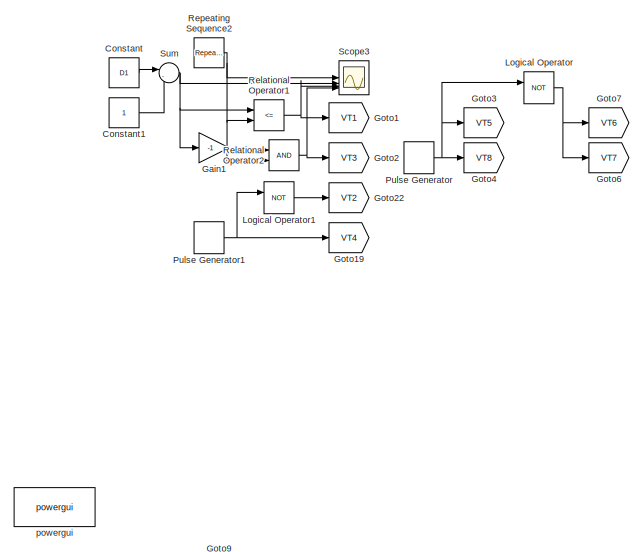
[diagram: root canvas - part 1/2, top left region]
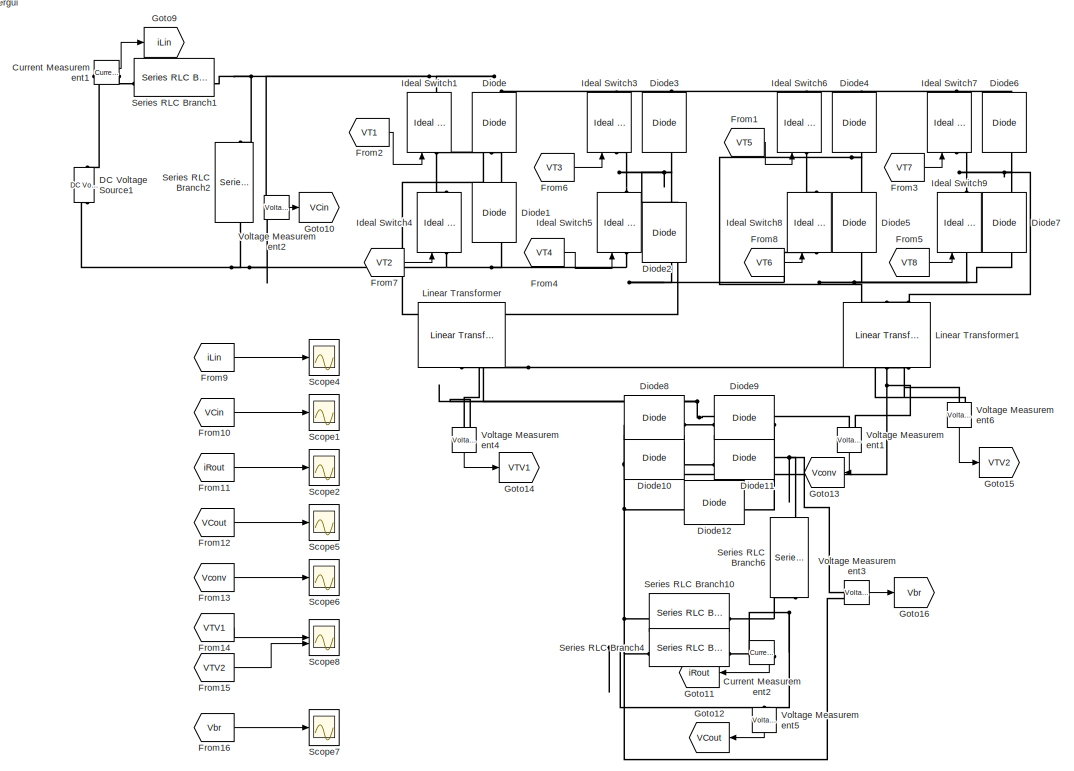
[diagram: root canvas - part 2/2, full width, bottom band]
MODEL slx_818c9b822532
KIND model
CONFIG AbsTol = auto
CONFIG EnableMultiTasking = off
CONFIG FixedStep = 1e-6
CONFIG MaxStep = auto
CONFIG MinStep = auto
CONFIG RelTol = 1e-3
CONFIG SampleTimeConstraint = Unconstrained
CONFIG SolverName = ode1
CONFIG StartTime = 0.0
CONFIG StopTime = time/3
BLOCK [Constant] Constant
  Value = D1
BLOCK [Constant] Constant1
BLOCK [Reference] Current Measurement1  REF=spsCurrentMeasurementLib/Current Measurement
  LibrarySourceBlock = sps_lib/Sensors and Measurements/Current Measurement
  SourceBlock = spsCurrentMeasurementLib/Current Measurement
  SourceType = Current Measurement
  UserDataPersistent = on
BLOCK [Reference] Current Measurement2  REF=spsCurrentMeasurementLib/Current Measurement
  LibrarySourceBlock = sps_lib/Sensors and Measurements/Current Measurement
  NameLocation = top
  SourceBlock = spsCurrentMeasurementLib/Current Measurement
  SourceType = Current Measurement
  UserDataPersistent = on
BLOCK [Reference] DC Voltage Source1  REF=spsDCVoltageSourceLib/DC Voltage Source
  LibrarySourceBlock = sps_lib/Sources/DC Voltage Source
  SourceBlock = spsDCVoltageSourceLib/DC Voltage Source
  SourceType = DC Voltage Source
BLOCK [Reference] Diode  REF=spsDiodeLib/Diode
  LibrarySourceBlock = sps_lib/Power Electronics/Diode
  NameLocation = right
  SourceBlock = spsDiodeLib/Diode
  SourceType = Diode
BLOCK [Reference] Diode1  REF=spsDiodeLib/Diode
  LibrarySourceBlock = sps_lib/Power Electronics/Diode
  NameLocation = right
  SourceBlock = spsDiodeLib/Diode
  SourceType = Diode
BLOCK [Reference] Diode10  REF=spsDiodeLib/Diode
  LibrarySourceBlock = sps_lib/Power Electronics/Diode
  SourceBlock = spsDiodeLib/Diode
  SourceType = Diode
BLOCK [Reference] Diode11  REF=spsDiodeLib/Diode
  LibrarySourceBlock = sps_lib/Power Electronics/Diode
  SourceBlock = spsDiodeLib/Diode
  SourceType = Diode
BLOCK [Reference] Diode12  REF=spsDiodeLib/Diode
  LibrarySourceBlock = sps_lib/Power Electronics/Diode
  SourceBlock = spsDiodeLib/Diode
  SourceType = Diode
BLOCK [Reference] Diode2  REF=spsDiodeLib/Diode
  LibrarySourceBlock = sps_lib/Power Electronics/Diode
  NameLocation = right
  SourceBlock = spsDiodeLib/Diode
  SourceType = Diode
BLOCK [Reference] Diode3  REF=spsDiodeLib/Diode
  LibrarySourceBlock = sps_lib/Power Electronics/Diode
  NameLocation = right
  SourceBlock = spsDiodeLib/Diode
  SourceType = Diode
BLOCK [Reference] Diode4  REF=spsDiodeLib/Diode
  LibrarySourceBlock = sps_lib/Power Electronics/Diode
  NameLocation = right
  SourceBlock = spsDiodeLib/Diode
  SourceType = Diode
BLOCK [Reference] Diode5  REF=spsDiodeLib/Diode
  LibrarySourceBlock = sps_lib/Power Electronics/Diode
  NameLocation = right
  SourceBlock = spsDiodeLib/Diode
  SourceType = Diode
BLOCK [Reference] Diode6  REF=spsDiodeLib/Diode
  LibrarySourceBlock = sps_lib/Power Electronics/Diode
  NameLocation = right
  SourceBlock = spsDiodeLib/Diode
  SourceType = Diode
BLOCK [Reference] Diode7  REF=spsDiodeLib/Diode
  LibrarySourceBlock = sps_lib/Power Electronics/Diode
  NameLocation = right
  SourceBlock = spsDiodeLib/Diode
  SourceType = Diode
BLOCK [Reference] Diode8  REF=spsDiodeLib/Diode
  LibrarySourceBlock = sps_lib/Power Electronics/Diode
  SourceBlock = spsDiodeLib/Diode
  SourceType = Diode
BLOCK [Reference] Diode9  REF=spsDiodeLib/Diode
  LibrarySourceBlock = sps_lib/Power Electronics/Diode
  SourceBlock = spsDiodeLib/Diode
  SourceType = Diode
BLOCK [From] From1
  GotoTag = VT5
  TagVisibility = global
BLOCK [From] From10
  GotoTag = VCin
  TagVisibility = global
BLOCK [From] From11
  GotoTag = iRout
  TagVisibility = global
BLOCK [From] From12
  GotoTag = VCout
  TagVisibility = global
BLOCK [From] From13
  GotoTag = Vconv
  TagVisibility = global
BLOCK [From] From14
  GotoTag = VTV1
  TagVisibility = global
BLOCK [From] From15
  GotoTag = VTV2
  TagVisibility = global
BLOCK [From] From16
  GotoTag = Vbr
  TagVisibility = global
BLOCK [From] From2
  GotoTag = VT1
  TagVisibility = global
BLOCK [From] From3
  GotoTag = VT7
  TagVisibility = global
BLOCK [From] From4
  GotoTag = VT4
  TagVisibility = global
BLOCK [From] From5
  GotoTag = VT8
  TagVisibility = global
BLOCK [From] From6
  GotoTag = VT3
  TagVisibility = global
BLOCK [From] From7
  GotoTag = VT2
  TagVisibility = global
BLOCK [From] From8
  GotoTag = VT6
  TagVisibility = global
BLOCK [From] From9
  GotoTag = iLin
  TagVisibility = global
BLOCK [Gain] Gain1
  Gain = -1
BLOCK [Goto] Goto1
  GotoTag = VT1
  TagVisibility = global
BLOCK [Goto] Goto10
  GotoTag = VCin
  TagVisibility = global
BLOCK [Goto] Goto11
  GotoTag = iRout
  NameLocation = top
  TagVisibility = global
BLOCK [Goto] Goto12
  GotoTag = VCout
  NameLocation = top
  TagVisibility = global
BLOCK [Goto] Goto13
  GotoTag = Vconv
  NameLocation = top
  TagVisibility = global
BLOCK [Goto] Goto14
  GotoTag = VTV1
  TagVisibility = global
BLOCK [Goto] Goto15
  GotoTag = VTV2
  TagVisibility = global
BLOCK [Goto] Goto16
  GotoTag = Vbr
  TagVisibility = global
BLOCK [Goto] Goto19
  GotoTag = VT4
  TagVisibility = global
BLOCK [Goto] Goto2
  GotoTag = VT3
  TagVisibility = global
BLOCK [Goto] Goto22
  GotoTag = VT2
  TagVisibility = global
BLOCK [Goto] Goto3
  GotoTag = VT5
  TagVisibility = global
BLOCK [Goto] Goto4
  GotoTag = VT8
  TagVisibility = global
BLOCK [Goto] Goto6
  GotoTag = VT7
  TagVisibility = global
BLOCK [Goto] Goto7
  GotoTag = VT6
  TagVisibility = global
BLOCK [Goto] Goto9
  GotoTag = iLin
  TagVisibility = global
BLOCK [Reference] Ideal Switch1  REF=spsIdealSwitchLib/Ideal Switch
  LibrarySourceBlock = sps_lib/Power Electronics/Ideal Switch
  NameLocation = right
  SourceBlock = spsIdealSwitchLib/Ideal Switch
  SourceType = Ideal Switch
BLOCK [Reference] Ideal Switch3  REF=spsIdealSwitchLib/Ideal Switch
  LibrarySourceBlock = sps_lib/Power Electronics/Ideal Switch
  NameLocation = right
  SourceBlock = spsIdealSwitchLib/Ideal Switch
  SourceType = Ideal Switch
BLOCK [Reference] Ideal Switch4  REF=spsIdealSwitchLib/Ideal Switch
  LibrarySourceBlock = sps_lib/Power Electronics/Ideal Switch
  NameLocation = right
  SourceBlock = spsIdealSwitchLib/Ideal Switch
  SourceType = Ideal Switch
BLOCK [Reference] Ideal Switch5  REF=spsIdealSwitchLib/Ideal Switch
  LibrarySourceBlock = sps_lib/Power Electronics/Ideal Switch
  NameLocation = right
  SourceBlock = spsIdealSwitchLib/Ideal Switch
  SourceType = Ideal Switch
BLOCK [Reference] Ideal Switch6  REF=spsIdealSwitchLib/Ideal Switch
  LibrarySourceBlock = sps_lib/Power Electronics/Ideal Switch
  NameLocation = right
  SourceBlock = spsIdealSwitchLib/Ideal Switch
  SourceType = Ideal Switch
BLOCK [Reference] Ideal Switch7  REF=spsIdealSwitchLib/Ideal Switch
  LibrarySourceBlock = sps_lib/Power Electronics/Ideal Switch
  NameLocation = right
  SourceBlock = spsIdealSwitchLib/Ideal Switch
  SourceType = Ideal Switch
BLOCK [Reference] Ideal Switch8  REF=spsIdealSwitchLib/Ideal Switch
  LibrarySourceBlock = sps_lib/Power Electronics/Ideal Switch
  NameLocation = right
  SourceBlock = spsIdealSwitchLib/Ideal Switch
  SourceType = Ideal Switch
BLOCK [Reference] Ideal Switch9  REF=spsIdealSwitchLib/Ideal Switch
  LibrarySourceBlock = sps_lib/Power Electronics/Ideal Switch
  NameLocation = right
  SourceBlock = spsIdealSwitchLib/Ideal Switch
  SourceType = Ideal Switch
BLOCK [Reference] Linear Transformer  REF=spsLinearTransformerLib/Linear Transformer
  LibrarySourceBlock = sps_lib/Power Grid Elements/Linear Transformer
  NameLocation = left
  SourceBlock = spsLinearTransformerLib/Linear Transformer
  SourceType = Linear Transformer
BLOCK [Reference] Linear Transformer1  REF=spsLinearTransformerLib/Linear Transformer
  LibrarySourceBlock = sps_lib/Power Grid Elements/Linear Transformer
  NameLocation = left
  SourceBlock = spsLinearTransformerLib/Linear Transformer
  SourceType = Linear Transformer
BLOCK [Logic] Logical Operator
  AllPortsSameDT = off
  Operator = NOT
  OutDataTypeStr = boolean
BLOCK [Logic] Logical Operator1
  AllPortsSameDT = off
  Operator = NOT
  OutDataTypeStr = boolean
BLOCK [DiscretePulseGenerator] Pulse Generator
  Period = 1/10000
  PulseType = Time based
  PulseWidth = 50
BLOCK [DiscretePulseGenerator] Pulse Generator1
  Period = 1/10000
  PulseType = Time based
  PulseWidth = 50
BLOCK [RelationalOperator] Relational Operator1
  InputSameDT = off
  Operator = <=
  OutDataTypeStr = boolean
  RndMeth = Simplest
BLOCK [RelationalOperator] Relational Operator2
  InputSameDT = off
  OutDataTypeStr = boolean
  RndMeth = Simplest
BLOCK [Reference] Repeating Sequence2  REF=simulink/Sources/Repeating
Sequence
  SourceBlock = simulink/Sources/Repeating\nSequence
  SourceType = Repeating table
BLOCK [Scope] Scope1
  Floating = off
  NumInputPorts = 1
  ScopeSpecificationString = Simulink.scopes.TimeScopeBlockCfg('CurrentConfiguration', extmgr.ConfigurationSet(extmgr.Configuration('Core','General UI',true,'FigureColor',[1 1 1]),extmgr.Configuration('Core','Source UI',true),extmgr.Configuration('Sources','WiredSimulink',true,'DataLoggingVariableName','ScopeData1'),extmgr.Configuration('Visuals','Time Domain',true,'SerializedDisplays',{struct('MinYLimReal','-59.93142','MaxYL...<+2347ch>
BLOCK [Scope] Scope2
  Floating = off
  NumInputPorts = 1
  ScopeSpecificationString = Simulink.scopes.TimeScopeBlockCfg('CurrentConfiguration', extmgr.ConfigurationSet(extmgr.Configuration('Core','General UI',true,'FigureColor',[1 1 1]),extmgr.Configuration('Core','Source UI',true),extmgr.Configuration('Sources','WiredSimulink',true,'DataLoggingVariableName','ScopeData2'),extmgr.Configuration('Visuals','Time Domain',true,'SerializedDisplays',{struct('MinYLimReal','-0.49171','MaxYLi...<+2311ch>
BLOCK [Scope] Scope3
  Floating = off
  NumInputPorts = 4
  ScopeSpecificationString = Simulink.scopes.TimeScopeBlockCfg('CurrentConfiguration', extmgr.ConfigurationSet(extmgr.Configuration('Core','General UI',true,'FigureColor',[1 1 1]),extmgr.Configuration('Core','Source UI',true),extmgr.Configuration('Sources','WiredSimulink',true,'DataLoggingVariableName','ScopeData2'),extmgr.Configuration('Visuals','Time Domain',true,'SerializedDisplays',{struct('MinYLimReal','-1.25','MaxYLimRe...<+2349ch>
BLOCK [Scope] Scope4
  Floating = off
  NumInputPorts = 1
  ScopeSpecificationString = Simulink.scopes.TimeScopeBlockCfg('CurrentConfiguration', extmgr.ConfigurationSet(extmgr.Configuration('Core','General UI',true,'FigureColor',[1 1 1]),extmgr.Configuration('Core','Source UI',true),extmgr.Configuration('Sources','WiredSimulink',true,'DataLoggingVariableName','ScopeData1'),extmgr.Configuration('Visuals','Time Domain',true,'SerializedDisplays',{struct('MinYLimReal','-36.77509','MaxYL...<+2322ch>
BLOCK [Scope] Scope5
  Floating = off
  NumInputPorts = 1
  ScopeSpecificationString = Simulink.scopes.TimeScopeBlockCfg('CurrentConfiguration', extmgr.ConfigurationSet(extmgr.Configuration('Core','General UI',true,'FigureColor',[1 1 1]),extmgr.Configuration('Core','Source UI',true),extmgr.Configuration('Sources','WiredSimulink',true,'DataLoggingVariableName','ScopeData3'),extmgr.Configuration('Visuals','Time Domain',true,'SerializedDisplays',{struct('MinYLimReal','-42.89224','MaxYL...<+2317ch>
BLOCK [Scope] Scope6
  Floating = off
  NumInputPorts = 1
  ScopeSpecificationString = Simulink.scopes.TimeScopeBlockCfg('CurrentConfiguration', extmgr.ConfigurationSet(extmgr.Configuration('Core','General UI',true,'FigureColor',[1 1 1]),extmgr.Configuration('Core','Source UI',true),extmgr.Configuration('Sources','WiredSimulink',true,'DataLoggingVariableName','ScopeData4'),extmgr.Configuration('Visuals','Time Domain',true,'SerializedDisplays',{struct('MinYLimReal','-374.7531','MaxYL...<+2320ch>
BLOCK [Scope] Scope7
  Floating = off
  NumInputPorts = 1
  ScopeSpecificationString = Simulink.scopes.TimeScopeBlockCfg('CurrentConfiguration', extmgr.ConfigurationSet(extmgr.Configuration('Core','General UI',true,'FigureColor',[1 1 1]),extmgr.Configuration('Core','Source UI',true),extmgr.Configuration('Sources','WiredSimulink',true,'DataLoggingVariableName','ScopeData1'),extmgr.Configuration('Visuals','Time Domain',true,'SerializedDisplays',{struct('MinYLimReal','-374.7531','MaxYL...<+2300ch>
BLOCK [Scope] Scope8
  Floating = off
  NumInputPorts = 2
  ScopeSpecificationString = Simulink.scopes.TimeScopeBlockCfg('CurrentConfiguration', extmgr.ConfigurationSet(extmgr.Configuration('Core','General UI',true,'FigureColor',[1 1 1]),extmgr.Configuration('Core','Source UI',true),extmgr.Configuration('Sources','WiredSimulink',true,'DataLoggingVariableName','ScopeData2'),extmgr.Configuration('Visuals','Time Domain',true,'SerializedDisplays',{struct('MinYLimReal','-598.89427','MaxY...<+2325ch>
BLOCK [Reference] Series RLC Branch1  REF=spsSeriesRLCBranchLib/Series RLC Branch
  LibrarySourceBlock = sps_lib/Passives/Series RLC Branch
  SourceBlock = spsSeriesRLCBranchLib/Series RLC Branch
  SourceType = Series RLC Branch
BLOCK [Reference] Series RLC Branch10  REF=spsSeriesRLCBranchLib/Series RLC Branch
  LibrarySourceBlock = sps_lib/Passives/Series RLC Branch
  NameLocation = top
  SourceBlock = spsSeriesRLCBranchLib/Series RLC Branch
  SourceType = Series RLC Branch
BLOCK [Reference] Series RLC Branch2  REF=spsSeriesRLCBranchLib/Series RLC Branch
  LibrarySourceBlock = sps_lib/Passives/Series RLC Branch
  NameLocation = left
  SourceBlock = spsSeriesRLCBranchLib/Series RLC Branch
  SourceType = Series RLC Branch
BLOCK [Reference] Series RLC Branch4  REF=spsSeriesRLCBranchLib/Series RLC Branch
  LibrarySourceBlock = sps_lib/Passives/Series RLC Branch
  NameLocation = top
  SourceBlock = spsSeriesRLCBranchLib/Series RLC Branch
  SourceType = Series RLC Branch
BLOCK [Reference] Series RLC Branch6  REF=spsSeriesRLCBranchLib/Series RLC Branch
  LibrarySourceBlock = sps_lib/Passives/Series RLC Branch
  NameLocation = left
  SourceBlock = spsSeriesRLCBranchLib/Series RLC Branch
  SourceType = Series RLC Branch
BLOCK [Sum] Sum
  Inputs = |-+
BLOCK [Reference] Voltage Measurement1  REF=spsVoltageMeasurementLib/Voltage Measurement
  LibrarySourceBlock = sps_lib/Sensors and Measurements/Voltage Measurement
  NameLocation = right
  SourceBlock = spsVoltageMeasurementLib/Voltage Measurement
  SourceType = Voltage Measurement
  UserDataPersistent = on
BLOCK [Reference] Voltage Measurement2  REF=spsVoltageMeasurementLib/Voltage Measurement
  LibrarySourceBlock = sps_lib/Sensors and Measurements/Voltage Measurement
  SourceBlock = spsVoltageMeasurementLib/Voltage Measurement
  SourceType = Voltage Measurement
  UserDataPersistent = on
BLOCK [Reference] Voltage Measurement3  REF=spsVoltageMeasurementLib/Voltage Measurement
  LibrarySourceBlock = sps_lib/Sensors and Measurements/Voltage Measurement
  NameLocation = top
  SourceBlock = spsVoltageMeasurementLib/Voltage Measurement
  SourceType = Voltage Measurement
  UserDataPersistent = on
BLOCK [Reference] Voltage Measurement4  REF=spsVoltageMeasurementLib/Voltage Measurement
  LibrarySourceBlock = sps_lib/Sensors and Measurements/Voltage Measurement
  NameLocation = right
  SourceBlock = spsVoltageMeasurementLib/Voltage Measurement
  SourceType = Voltage Measurement
  UserDataPersistent = on
BLOCK [Reference] Voltage Measurement5  REF=spsVoltageMeasurementLib/Voltage Measurement
  LibrarySourceBlock = sps_lib/Sensors and Measurements/Voltage Measurement
  NameLocation = left
  SourceBlock = spsVoltageMeasurementLib/Voltage Measurement
  SourceType = Voltage Measurement
  UserDataPersistent = on
BLOCK [Reference] Voltage Measurement6  REF=spsVoltageMeasurementLib/Voltage Measurement
  LibrarySourceBlock = sps_lib/Sensors and Measurements/Voltage Measurement
  NameLocation = right
  SourceBlock = spsVoltageMeasurementLib/Voltage Measurement
  SourceType = Voltage Measurement
  UserDataPersistent = on
BLOCK [Reference] powergui  REF=spspowerguiLib/powergui
  LibrarySourceBlock = sps_lib/powergui
  Priority = 1
  SourceBlock = spspowerguiLib/powergui
  SourceType = PSB option menu block
LINE Constant1:1 -> Sum:2
LINE Constant:1 -> Sum:1
LINE Current Measurement1:1 -> Goto9:1
LINE Current Measurement2:1 -> Goto11:1
LINE From10:1 -> Scope1:1
LINE From11:1 -> Scope2:1
LINE From12:1 -> Scope5:1
LINE From13:1 -> Scope6:1
LINE From14:1 -> Scope8:1
LINE From15:1 -> Scope8:2
LINE From16:1 -> Scope7:1
LINE From1:1 -> Ideal Switch6:1
LINE From2:1 -> Ideal Switch1:1
LINE From3:1 -> Ideal Switch7:1
LINE From4:1 -> Ideal Switch5:1
LINE From5:1 -> Ideal Switch9:1
LINE From6:1 -> Ideal Switch3:1
LINE From7:1 -> Ideal Switch4:1
LINE From8:1 -> Ideal Switch8:1
LINE From9:1 -> Scope4:1
LINE Gain1:1 -> Relational Operator2:1
LINE Logical Operator1:1 -> Goto22:1
NET Logical Operator:1 -> Goto6:1, Goto7:1
NET Pulse Generator1:1 -> Goto19:1, Logical Operator1:1
NET Pulse Generator:1 -> Goto3:1, Goto4:1, Logical Operator:1
NET Relational Operator1:1 -> Goto1:1, Scope3:3
NET Relational Operator2:1 -> Goto2:1, Scope3:4
NET Repeating Sequence2:1 -> Relational Operator1:2, Relational Operator2:2, Scope3:1
NET Sum:1 -> Gain1:1, Relational Operator1:1, Scope3:2
LINE Voltage Measurement1:1 -> Goto13:1
LINE Voltage Measurement2:1 -> Goto10:1
LINE Voltage Measurement3:1 -> Goto16:1
LINE Voltage Measurement4:1 -> Goto14:1
LINE Voltage Measurement5:1 -> Goto12:1
LINE Voltage Measurement6:1 -> Goto15:1
PLINE Current Measurement1:LConn1 -- DC Voltage Source1:RConn1
PLINE Current Measurement1:RConn1 -- Series RLC Branch1:LConn1
PNET net1: Current Measurement2:LConn1 -- Series RLC Branch10:LConn1 -- Series RLC Branch6:RConn1 -- Voltage Measurement5:LConn1
PLINE Current Measurement2:RConn1 -- Series RLC Branch4:LConn1
PNET net2: DC Voltage Source1:LConn1 -- Diode1:LConn1 -- Diode2:LConn1 -- Diode5:LConn1 -- Diode7:LConn1 -- Ideal Switch4:LConn1 -- Ideal Switch5:LConn1 -- Ideal Switch8:LConn1 -- Ideal Switch9:LConn1 -- Series RLC Branch2:RConn1 -- Voltage Measurement2:LConn2
PNET net3: Diode10:LConn1 -- Diode12:LConn1 -- Diode8:LConn1 -- Series RLC Branch10:RConn1 -- Series RLC Branch4:RConn1 -- Voltage Measurement3:LConn2 -- Voltage Measurement5:LConn2
PNET net4: Diode10:RConn1 -- Diode11:LConn1 -- Linear Transformer1:RConn1 -- Voltage Measurement1:LConn2 -- Voltage Measurement6:LConn1
PNET net5: Diode11:RConn1 -- Diode12:RConn1 -- Diode9:RConn1 -- Series RLC Branch6:LConn1 -- Voltage Measurement3:LConn1
PNET net6: Diode1:RConn1 -- Diode:LConn1 -- Ideal Switch1:LConn1 -- Ideal Switch4:RConn1 -- Linear Transformer:LConn2
PNET net7: Diode2:RConn1 -- Diode3:LConn1 -- Ideal Switch3:LConn1 -- Ideal Switch5:RConn1 -- Linear Transformer:LConn1
PNET net8: Diode3:RConn1 -- Diode4:RConn1 -- Diode6:RConn1 -- Diode:RConn1 -- Ideal Switch1:RConn1 -- Ideal Switch3:RConn1 -- Ideal Switch6:RConn1 -- Ideal Switch7:RConn1 -- Series RLC Branch1:RConn1 -- Series RLC Branch2:LConn1 -- Voltage Measurement2:LConn1
PNET net9: Diode4:LConn1 -- Diode5:RConn1 -- Ideal Switch6:LConn1 -- Ideal Switch8:RConn1 -- Linear Transformer1:LConn2
PNET net10: Diode6:LConn1 -- Diode7:RConn1 -- Ideal Switch7:LConn1 -- Ideal Switch9:RConn1 -- Linear Transformer1:LConn1
PNET net11: Diode8:RConn1 -- Diode9:LConn1 -- Linear Transformer:RConn2 -- Voltage Measurement1:LConn1 -- Voltage Measurement4:LConn2
PNET net12: Linear Transformer1:RConn2 -- Linear Transformer:RConn1 -- Voltage Measurement4:LConn1 -- Voltage Measurement6:LConn2
note: NET lines group one-source signal fan-out (src -> all destinations, sorted); 1:1 wires keep LINE; PNET lines group multi-terminal physical nets as a canonical sorted terminal list (undirected conserving connections); 2-terminal nets keep the pairwise PLINE form
